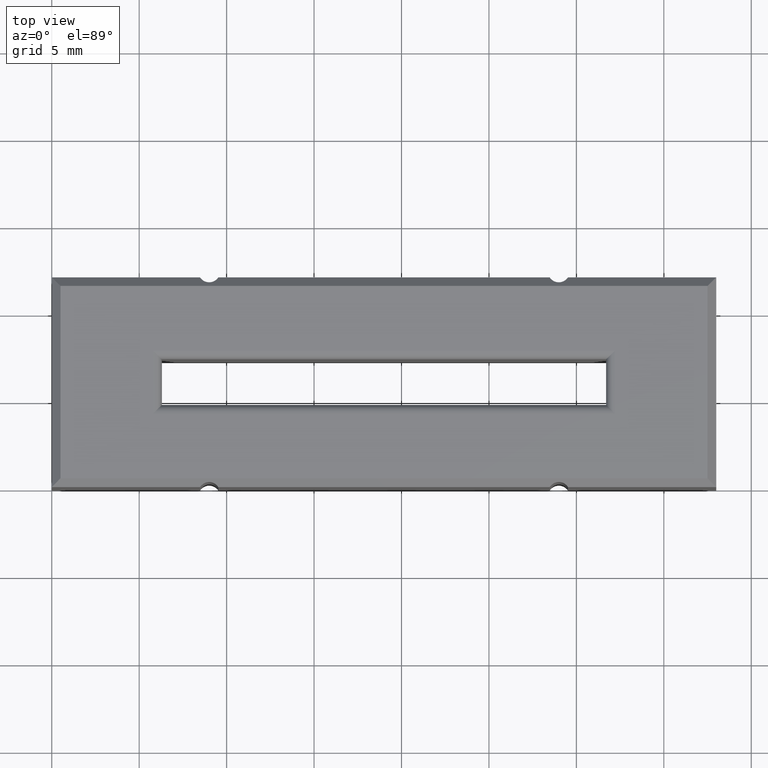
[diagram: clean part render]
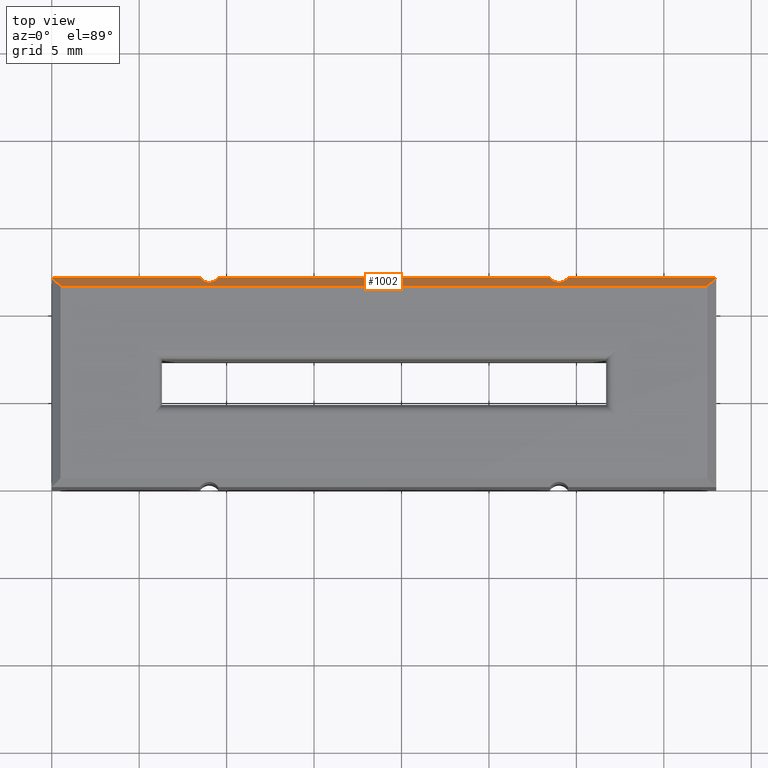
[diagram: same view with one face highlighted and labeled with its STEP entity id]
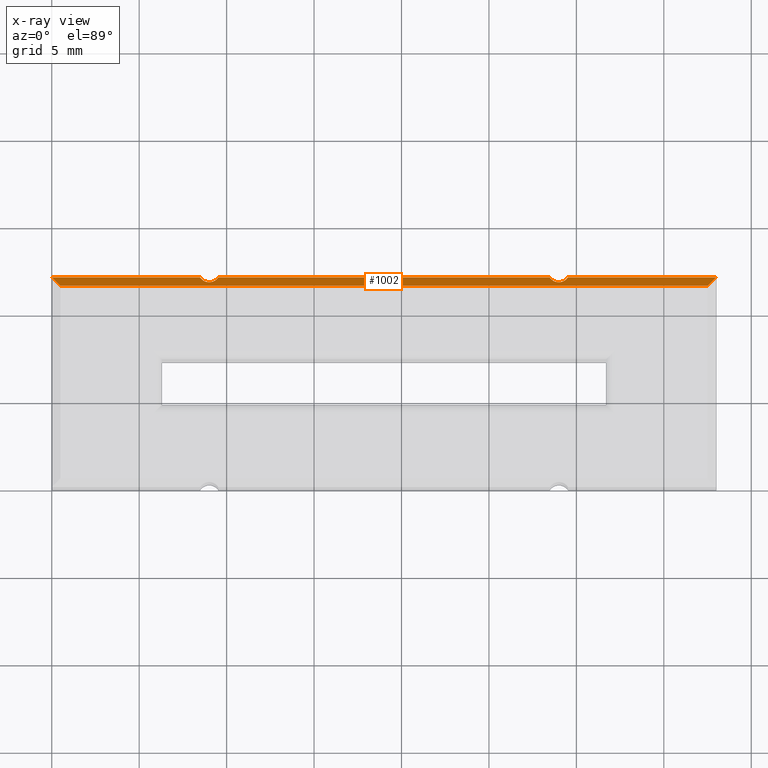
[diagram: x-ray of the same camera — body ghosted, the highlighted face saturated]
A machine part, top view. The second image highlights one B-rep face of the part: STEP entity #1002.
The next image is the same camera in x-ray: the body ghosted, the highlighted face saturated — about 0% of this face is hidden behind the body in this view.
In plain terms, the highlighted planar face has unit normal (-0, -0.7071, -0.7071).
Its self-contained STEP definition (entity closure, byte-faithful):
#79 = LINE ( 'NONE', #141, #1358 ) ;
#90 = EDGE_LOOP ( 'NONE', ( #2509, #1065, #1012, #1758, #2710, #2798, #2398, #1638 ) ) ;
#98 = PLANE ( 'NONE',  #1337 ) ;
#101 = CARTESIAN_POINT ( 'NONE',  ( 8.747311284851830848, 11.56920841759185947, 12.63079158240813982 ) ) ;
#141 = CARTESIAN_POINT ( 'NONE',  ( 0.000000000000000000, 12.00000000000000000, 12.19999999999999574 ) ) ;
#292 = CARTESIAN_POINT ( 'NONE',  ( 28.47331654267860301, 12.00000000000000000, 12.19999999999999574 ) ) ;
#332 = VECTOR ( 'NONE', #1394, 1000.000000000000000 ) ;
#370 = CARTESIAN_POINT ( 'NONE',  ( 0.000000000000000000, 12.00000000000000000, 12.19999999999999574 ) ) ;
#455 = CARTESIAN_POINT ( 'NONE',  ( 38.00000000000000000, 12.00000000000000000, 12.19999999999999574 ) ) ;
#475 = CARTESIAN_POINT ( 'NONE',  ( 28.74394437020903226, 11.56920841759186303, 12.63079158240813804 ) ) ;
#482 = VERTEX_POINT ( 'NONE', #455 ) ;
#487 = EDGE_CURVE ( 'NONE', #2343, #758, #2758, .T. ) ;
#697 = DIRECTION ( 'NONE',  ( -1.000000000000000000, 0.000000000000000000, 0.000000000000000000 ) ) ;
#725 = CARTESIAN_POINT ( 'NONE',  ( 29.52331654267860017, 12.00000000000000000, 12.19999999999999574 ) ) ;
#758 = VERTEX_POINT ( 'NONE', #1479 ) ;
#849 = FACE_OUTER_BOUND ( 'NONE', #90, .T. ) ;
#877 = DIRECTION ( 'NONE',  ( 1.000000000000000000, 0.000000000000000000, 0.000000000000000000 ) ) ;
#885 = CARTESIAN_POINT ( 'NONE',  ( 0.000000000000000000, 11.50000000000000000, 12.69999999999999929 ) ) ;
#1002 = ADVANCED_FACE ( 'NONE', ( #849 ), #98, .F. ) ;
#1012 = ORIENTED_EDGE ( 'NONE', *, *, #1705, .F. ) ;
#1029 = EDGE_CURVE ( 'NONE', #1827, #1984, #1343, .T. ) ;
#1065 = ORIENTED_EDGE ( 'NONE', *, *, #1029, .T. ) ;
#1078 = CARTESIAN_POINT ( 'NONE',  ( 9.256055629790965966, 11.56920841759185947, 12.63079158240813982 ) ) ;
#1146 = LINE ( 'NONE', #370, #332 ) ;
#1213 = VERTEX_POINT ( 'NONE', #1523 ) ;
#1311 = VECTOR ( 'NONE', #877, 1000.000000000000000 ) ;
#1337 = AXIS2_PLACEMENT_3D ( 'NONE', #885, #2657, #1920 ) ;
#1343 =( BOUNDED_CURVE ( )  B_SPLINE_CURVE ( 3, ( #725, #2285, #475, #3042 ),
 .UNSPECIFIED., .F., .F. ) 
 B_SPLINE_CURVE_WITH_KNOTS ( ( 4, 4 ),
 ( 5.273293692877873973, 7.293076921481295827 ),
 .UNSPECIFIED. ) 
 CURVE ( )  GEOMETRIC_REPRESENTATION_ITEM ( )  RATIONAL_B_SPLINE_CURVE ( ( 1.000000000000000000, 0.6879683351406545855, 0.6879683351406545855, 1.000000000000000000 ) ) 
 REPRESENTATION_ITEM ( '' )  );
#1345 = CARTESIAN_POINT ( 'NONE',  ( 25.00000000000006040, -0.9999999999999453770, 25.20000000000002771 ) ) ;
#1358 = VECTOR ( 'NONE', #3184, 1000.000000000000000 ) ;
#1379 = CARTESIAN_POINT ( 'NONE',  ( 37.50000000000000000, 11.50000000000000000, 12.69999999999999929 ) ) ;
#1394 = DIRECTION ( 'NONE',  ( 1.000000000000000000, 0.000000000000000000, 0.000000000000000000 ) ) ;
#1409 = VECTOR ( 'NONE', #1623, 1000.000000000000227 ) ;
#1479 = CARTESIAN_POINT ( 'NONE',  ( 0.5000000000000004441, 11.50000000000000000, 12.69999999999999929 ) ) ;
#1493 = DIRECTION ( 'NONE',  ( 0.5773502691896243988, -0.5773502691896243988, 0.5773502691896283956 ) ) ;
#1523 = CARTESIAN_POINT ( 'NONE',  ( 9.526683457321398762, 12.00000000000000000, 12.19999999999999574 ) ) ;
#1609 = CARTESIAN_POINT ( 'NONE',  ( 9.526683457321398762, 12.00000000000000000, 12.19999999999999574 ) ) ;
#1623 = DIRECTION ( 'NONE',  ( -0.5773502691896243988, -0.5773502691896243988, 0.5773502691896283956 ) ) ;
#1638 = ORIENTED_EDGE ( 'NONE', *, *, #1809, .F. ) ;
#1643 = LINE ( 'NONE', #1659, #1311 ) ;
#1646 = EDGE_CURVE ( 'NONE', #3284, #758, #2197, .T. ) ;
#1659 = CARTESIAN_POINT ( 'NONE',  ( 0.000000000000000000, 12.00000000000000000, 12.19999999999999574 ) ) ;
#1685 =( BOUNDED_CURVE ( )  B_SPLINE_CURVE ( 3, ( #2848, #101, #1078, #1609 ),
 .UNSPECIFIED., .F., .F. ) 
 B_SPLINE_CURVE_WITH_KNOTS ( ( 4, 4 ),
 ( 5.273293692877873973, 7.293076921481298491 ),
 .UNSPECIFIED. ) 
 CURVE ( )  GEOMETRIC_REPRESENTATION_ITEM ( )  RATIONAL_B_SPLINE_CURVE ( ( 1.000000000000000000, 0.6879683351406538083, 0.6879683351406538083, 1.000000000000000000 ) ) 
 REPRESENTATION_ITEM ( '' )  );
#1705 = EDGE_CURVE ( 'NONE', #1213, #1984, #1643, .T. ) ;
#1712 = CARTESIAN_POINT ( 'NONE',  ( 0.000000000000000000, 11.50000000000000000, 12.69999999999999929 ) ) ;
#1758 = ORIENTED_EDGE ( 'NONE', *, *, #1808, .F. ) ;
#1808 = EDGE_CURVE ( 'NONE', #2925, #1213, #1685, .T. ) ;
#1809 = EDGE_CURVE ( 'NONE', #482, #3284, #2383, .T. ) ;
#1827 = VERTEX_POINT ( 'NONE', #2101 ) ;
#1872 = VECTOR ( 'NONE', #1493, 1000.000000000000227 ) ;
#1920 = DIRECTION ( 'NONE',  ( -1.000000000000000000, 0.000000000000000000, 0.000000000000000000 ) ) ;
#1984 = VERTEX_POINT ( 'NONE', #292 ) ;
#2101 = CARTESIAN_POINT ( 'NONE',  ( 29.52331654267860017, 12.00000000000000000, 12.19999999999999574 ) ) ;
#2104 = EDGE_CURVE ( 'NONE', #1827, #482, #79, .T. ) ;
#2197 = LINE ( 'NONE', #1712, #2488 ) ;
#2283 = CARTESIAN_POINT ( 'NONE',  ( 0.000000000000000000, 12.00000000000000000, 12.19999999999999574 ) ) ;
#2285 = CARTESIAN_POINT ( 'NONE',  ( 29.25268871514816738, 11.56920841759185947, 12.63079158240813804 ) ) ;
#2309 = CARTESIAN_POINT ( 'NONE',  ( 8.476683457321398052, 12.00000000000000000, 12.19999999999999574 ) ) ;
#2343 = VERTEX_POINT ( 'NONE', #2283 ) ;
#2383 = LINE ( 'NONE', #1345, #1409 ) ;
#2398 = ORIENTED_EDGE ( 'NONE', *, *, #1646, .F. ) ;
#2488 = VECTOR ( 'NONE', #697, 1000.000000000000000 ) ;
#2509 = ORIENTED_EDGE ( 'NONE', *, *, #2104, .F. ) ;
#2657 = DIRECTION ( 'NONE',  ( -0.000000000000000000, -0.7071067811865500152, -0.7071067811865451302 ) ) ;
#2710 = ORIENTED_EDGE ( 'NONE', *, *, #3186, .F. ) ;
#2758 = LINE ( 'NONE', #2773, #1872 ) ;
#2773 = CARTESIAN_POINT ( 'NONE',  ( 0.3333333333333344251, 11.66666666666666607, 12.53333333333333144 ) ) ;
#2798 = ORIENTED_EDGE ( 'NONE', *, *, #487, .T. ) ;
#2848 = CARTESIAN_POINT ( 'NONE',  ( 8.476683457321398052, 12.00000000000000000, 12.19999999999999574 ) ) ;
#2925 = VERTEX_POINT ( 'NONE', #2309 ) ;
#3042 = CARTESIAN_POINT ( 'NONE',  ( 28.47331654267860301, 12.00000000000000000, 12.19999999999999574 ) ) ;
#3184 = DIRECTION ( 'NONE',  ( 1.000000000000000000, 0.000000000000000000, 0.000000000000000000 ) ) ;
#3186 = EDGE_CURVE ( 'NONE', #2343, #2925, #1146, .T. ) ;
#3284 = VERTEX_POINT ( 'NONE', #1379 ) ;